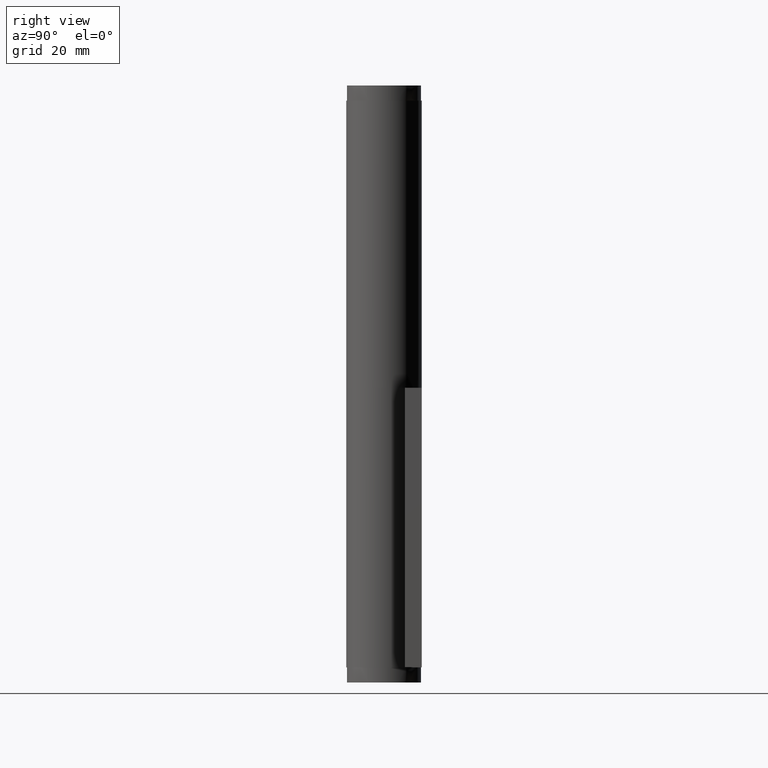
[diagram: clean part render]
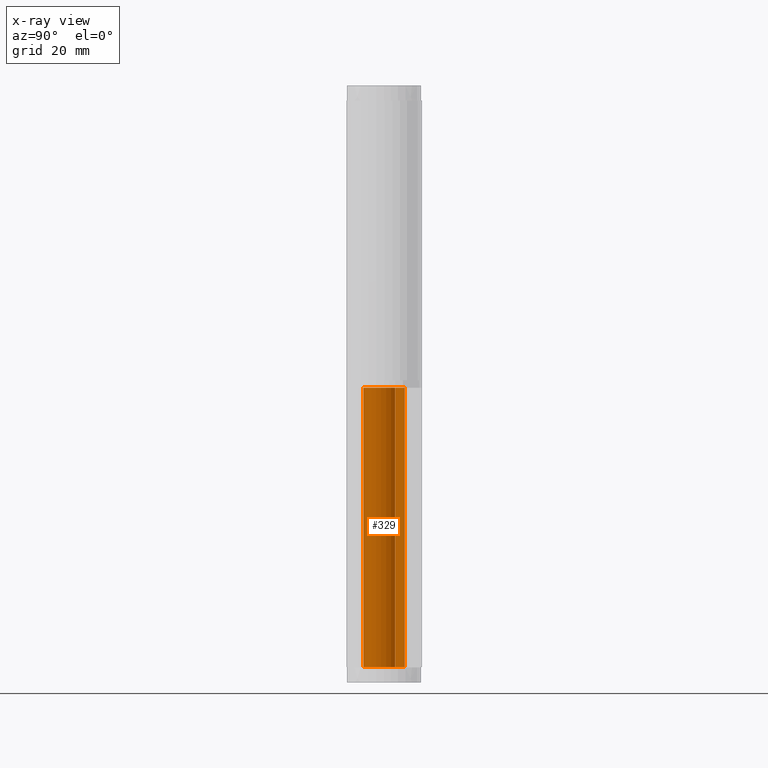
[diagram: x-ray — body ghosted, one internal face saturated and labeled with its STEP entity id]
A machine part, right view, then the same camera in x-ray: the body is ghosted and one INTERNAL B-rep face — a face not visible from any outside direction — is saturated and labeled: STEP entity #329.
In plain terms, the highlighted face is a freeform B-spline surface patch.
Its self-contained STEP definition (entity closure, byte-faithful):
#49=CARTESIAN_POINT('',(4.611398242398940,2.997500000000000,0.0));
#50=VERTEX_POINT('',#49);
#51=CARTESIAN_POINT('',(0.0,5.500000000000000,0.0));
#52=VERTEX_POINT('',#51);
#53=CARTESIAN_POINT('',(4.611398242398938,2.997499999999997,0.0));
#54=CARTESIAN_POINT('',(6.943047373164694,-0.589543437365882,0.0));
#55=CARTESIAN_POINT('',(4.039978906660805,-3.732100003179947,0.0));
#56=CARTESIAN_POINT('',(1.136910440156917,-6.874656568994013,0.0));
#57=CARTESIAN_POINT('',(-2.623332803896601,-4.834058853592910,0.0));
#58=CARTESIAN_POINT('',(-6.383576047950122,-2.793461138191805,0.0));
#59=CARTESIAN_POINT('',(-5.330915666879424,1.353269430904100,0.0));
#60=CARTESIAN_POINT('',(-4.278255285808728,5.500000000000001,0.0));
#61=CARTESIAN_POINT('',(0.0,5.500000000000000,0.0));
#69=(BOUNDED_CURVE()B_SPLINE_CURVE(2,(#53,#54,#55,#56,#57,#58,#59,#60,#61),.UNSPECIFIED.,.F.,.U.)B_SPLINE_CURVE_WITH_KNOTS((3,2,2,2,3),(0.0,0.250000000000000,0.500000000000000,0.750000000000000,1.0),.UNSPECIFIED.)CURVE()GEOMETRIC_REPRESENTATION_ITEM()RATIONAL_B_SPLINE_CURVE((1.0,0.789319006307687,1.0,0.789319006307687,1.0,0.789319006307687,1.0,0.789319006307687,1.0))REPRESENTATION_ITEM(''));
#70=EDGE_CURVE('',#50,#52,#69,.T.);
#127=CARTESIAN_POINT('',(4.611398242398940,2.997500000000000,74.0));
#128=VERTEX_POINT('',#127);
#129=CARTESIAN_POINT('',(0.0,5.500000000000000,74.0));
#130=VERTEX_POINT('',#129);
#131=CARTESIAN_POINT('',(4.611398242398938,2.997499999999997,74.0));
#132=CARTESIAN_POINT('',(6.943047373164694,-0.589543437365882,74.0));
#133=CARTESIAN_POINT('',(4.039978906660805,-3.732100003179947,74.0));
#134=CARTESIAN_POINT('',(1.136910440156917,-6.874656568994013,74.0));
#135=CARTESIAN_POINT('',(-2.623332803896601,-4.834058853592910,74.0));
#136=CARTESIAN_POINT('',(-6.383576047950122,-2.793461138191805,74.0));
#137=CARTESIAN_POINT('',(-5.330915666879424,1.353269430904100,74.0));
#138=CARTESIAN_POINT('',(-4.278255285808728,5.500000000000001,74.0));
#139=CARTESIAN_POINT('',(0.0,5.500000000000000,74.0));
#147=(BOUNDED_CURVE()B_SPLINE_CURVE(2,(#131,#132,#133,#134,#135,#136,#137,#138,#139),.UNSPECIFIED.,.F.,.U.)B_SPLINE_CURVE_WITH_KNOTS((3,2,2,2,3),(0.0,0.250000000000000,0.500000000000000,0.750000000000000,1.0),.UNSPECIFIED.)CURVE()GEOMETRIC_REPRESENTATION_ITEM()RATIONAL_B_SPLINE_CURVE((1.0,0.789319006307687,1.0,0.789319006307687,1.0,0.789319006307687,1.0,0.789319006307687,1.0))REPRESENTATION_ITEM(''));
#148=EDGE_CURVE('',#128,#130,#147,.T.);
#206=CARTESIAN_POINT('',(4.611398242398940,2.997500000000000,74.0));
#207=CARTESIAN_POINT('',(4.611398242398940,2.997500000000000,0.0));
#208=QUASI_UNIFORM_CURVE('',1,(#206,#207),.UNSPECIFIED.,.F.,.U.);
#209=EDGE_CURVE('',#128,#50,#208,.T.);
#293=CARTESIAN_POINT('',(0.0,5.500000000000000,74.0));
#294=CARTESIAN_POINT('',(0.0,5.500000000000000,0.0));
#295=QUASI_UNIFORM_CURVE('',1,(#293,#294),.UNSPECIFIED.,.F.,.U.);
#296=EDGE_CURVE('',#130,#52,#295,.T.);
#301=CARTESIAN_POINT('',(0.237541323048229,5.494867980201570,75.850000000000023));
#302=CARTESIAN_POINT('',(0.237541323048229,5.494867980201570,-1.896250000000009));
#303=CARTESIAN_POINT('',(-6.711852223460151,5.795287961785890,75.850000000000023));
#304=CARTESIAN_POINT('',(-6.711852223460151,5.795287961785890,-1.896250000000010));
#305=CARTESIAN_POINT('',(-5.401533901700534,-1.036065397926115,75.850000000000023));
#306=CARTESIAN_POINT('',(-5.401533901700534,-1.036065397926115,-1.896250000000009));
#307=CARTESIAN_POINT('',(-4.091215579940915,-7.867418757638119,75.850000000000023));
#308=CARTESIAN_POINT('',(-4.091215579940915,-7.867418757638119,-1.896250000000010));
#309=CARTESIAN_POINT('',(2.253817565122729,-5.017001732423882,75.850000000000023));
#310=CARTESIAN_POINT('',(2.253817565122729,-5.017001732423882,-1.896250000000009));
#311=CARTESIAN_POINT('',(8.598850710186373,-2.166584707209645,75.850000000000023));
#312=CARTESIAN_POINT('',(8.598850710186373,-2.166584707209645,-1.896250000000010));
#313=CARTESIAN_POINT('',(4.362001701149763,3.350065844004644,75.850000000000023));
#314=CARTESIAN_POINT('',(4.362001701149763,3.350065844004644,-1.896250000000009));
#322=(BOUNDED_SURFACE()B_SPLINE_SURFACE(1,2,((#301,#303,#305,#307,#309,#311,#313),(#302,#304,#306,#308,#310,#312,#314)),.UNSPECIFIED.,.F.,.F.,.U.)B_SPLINE_SURFACE_WITH_KNOTS((2,2),(3,2,2,3),(0.0,77.746250000000032),(0.0,10.651010128609400,21.302020257218800,31.953030385828200),.UNSPECIFIED.)GEOMETRIC_REPRESENTATION_ITEM()RATIONAL_B_SPLINE_SURFACE(((1.0,0.620235491268260,1.0,0.620235491268260,1.0,0.620235491268260,1.0),(1.0,0.620235491268260,1.0,0.620235491268260,1.0,0.620235491268260,1.0)))REPRESENTATION_ITEM('')SURFACE());
#323=ORIENTED_EDGE('',*,*,#70,.T.);
#324=ORIENTED_EDGE('',*,*,#296,.F.);
#325=ORIENTED_EDGE('',*,*,#148,.F.);
#326=ORIENTED_EDGE('',*,*,#209,.T.);
#327=EDGE_LOOP('',(#323,#324,#325,#326));
#328=FACE_OUTER_BOUND('',#327,.T.);
#329=ADVANCED_FACE('',(#328),#322,.F.);